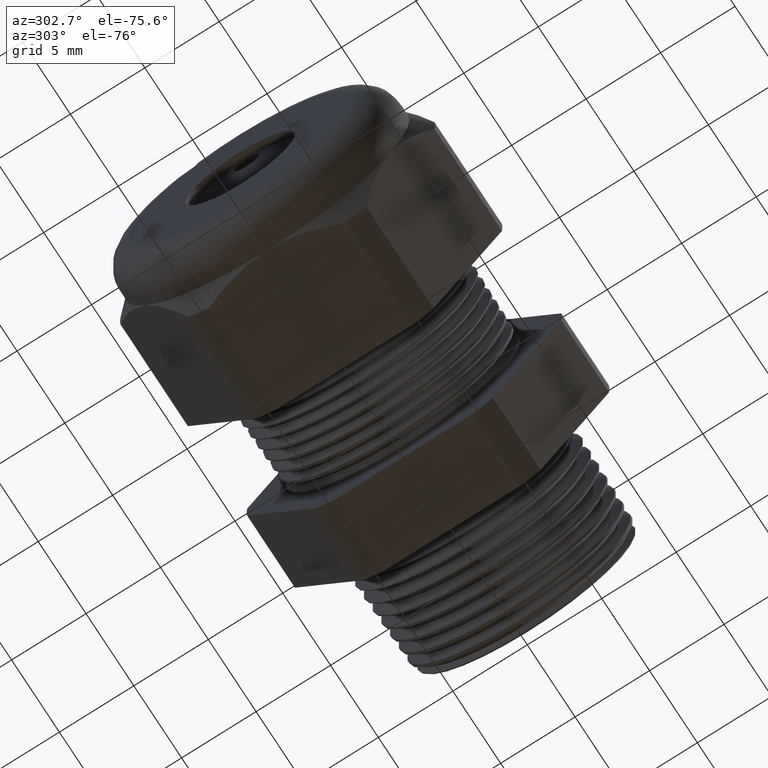
[diagram: clean part render]
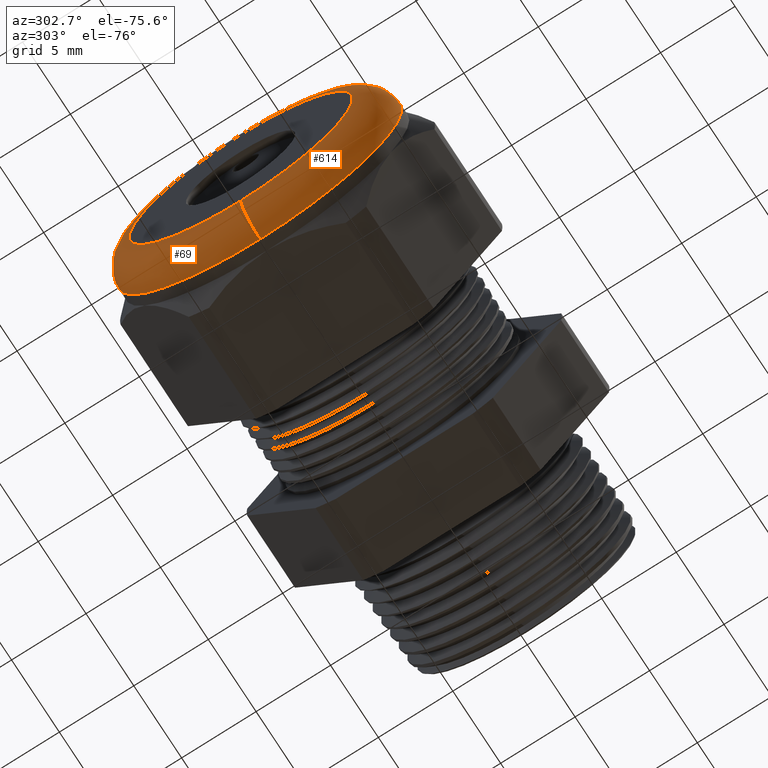
[diagram: same view with one multi-face feature highlighted, each face labeled with its STEP entity id]
A machine part, auxiliary view. The highlighted faces form ONE feature: a constant-radius fillet chain: 2 tangent blend faces with common blend radius 2.032 mm. The faces share edges in the B-rep.
Their STEP definitions:
[1] entity #69 (Torus):
#69 = ADVANCED_FACE ( 'NONE', ( #1507 ), #1506, .T. ) ;
#70 = ORIENTED_EDGE ( 'NONE', *, *, #71, .F. ) ;
#71 = EDGE_CURVE ( 'NONE', #72, #73, #1500, .T. ) ;
#72 = VERTEX_POINT ( 'NONE', #1496 ) ;
#73 = VERTEX_POINT ( 'NONE', #1495 ) ;
#74 = ORIENTED_EDGE ( 'NONE', *, *, #75, .T. ) ;
#75 = EDGE_CURVE ( 'NONE', #72, #76, #1557, .T. ) ;
#76 = VERTEX_POINT ( 'NONE', #1552 ) ;
#77 = ORIENTED_EDGE ( 'NONE', *, *, #78, .F. ) ;
#78 = EDGE_CURVE ( 'NONE', #79, #76, #1551, .T. ) ;
#79 = VERTEX_POINT ( 'NONE', #1546 ) ;
#80 = ORIENTED_EDGE ( 'NONE', *, *, #81, .F. ) ;
#81 = EDGE_CURVE ( 'NONE', #73, #79, #1545, .T. ) ;
#97 = EDGE_LOOP ( 'NONE', ( #70, #74, #77, #80 ) ) ;
#1495 = CARTESIAN_POINT ( 'NONE',  ( -1.100000000000000100, 4.592425496802576100E-017, 0.3750000000000001100 ) ) ;
#1496 = CARTESIAN_POINT ( 'NONE',  ( -1.100000000000000100, 0.0000000000000000000, -0.3750000000000001100 ) ) ;
#1497 = DIRECTION ( 'NONE',  ( 0.0000000000000000000, 0.0000000000000000000, 1.000000000000000000 ) ) ;
#1498 = DIRECTION ( 'NONE',  ( 1.000000000000000000, 0.0000000000000000000, 0.0000000000000000000 ) ) ;
#1499 = AXIS2_PLACEMENT_3D ( 'NONE', #1505, #1498, #1497 ) ;
#1500 = CIRCLE ( 'NONE', #1499, 0.3750000000000001100 ) ;
#1501 = DIRECTION ( 'NONE',  ( 0.0000000000000000000, 0.0000000000000000000, 1.000000000000000000 ) ) ;
#1502 = DIRECTION ( 'NONE',  ( -1.000000000000000000, 0.0000000000000000000, 0.0000000000000000000 ) ) ;
#1503 = CARTESIAN_POINT ( 'NONE',  ( -1.100000000000000100, 0.0000000000000000000, 0.0000000000000000000 ) ) ;
#1504 = AXIS2_PLACEMENT_3D ( 'NONE', #1503, #1502, #1501 ) ;
#1505 = CARTESIAN_POINT ( 'NONE',  ( -1.100000000000000100, 0.0000000000000000000, 0.0000000000000000000 ) ) ;
#1506 = TOROIDAL_SURFACE ( 'NONE', #1504, 0.2950000000000001000, 0.08000000000000000200 ) ;
#1507 = FACE_OUTER_BOUND ( 'NONE', #97, .T. ) ;
#1541 = DIRECTION ( 'NONE',  ( 0.0000000000000000000, 0.0000000000000000000, -1.000000000000000000 ) ) ;
#1542 = DIRECTION ( 'NONE',  ( 0.0000000000000000000, -1.000000000000000000, 0.0000000000000000000 ) ) ;
#1543 = CARTESIAN_POINT ( 'NONE',  ( -1.100000000000000100, 0.0000000000000000000, 0.2950000000000001000 ) ) ;
#1544 = AXIS2_PLACEMENT_3D ( 'NONE', #1543, #1542, #1541 ) ;
#1545 = CIRCLE ( 'NONE', #1544, 0.08000000000000000200 ) ;
#1546 = CARTESIAN_POINT ( 'NONE',  ( -1.179999999999999900, 0.0000000000000000000, 0.2950000000000001000 ) ) ;
#1547 = DIRECTION ( 'NONE',  ( 0.0000000000000000000, 0.0000000000000000000, 1.000000000000000000 ) ) ;
#1548 = DIRECTION ( 'NONE',  ( -1.000000000000000000, 0.0000000000000000000, 0.0000000000000000000 ) ) ;
#1549 = CARTESIAN_POINT ( 'NONE',  ( -1.179999999999999900, 0.0000000000000000000, 0.0000000000000000000 ) ) ;
#1550 = AXIS2_PLACEMENT_3D ( 'NONE', #1549, #1548, #1547 ) ;
#1551 = CIRCLE ( 'NONE', #1550, 0.2950000000000001000 ) ;
#1552 = CARTESIAN_POINT ( 'NONE',  ( -1.179999999999999900, 4.102566777143634000E-017, -0.2950000000000001000 ) ) ;
#1553 = DIRECTION ( 'NONE',  ( 0.0000000000000000000, -1.224646799147353500E-016, 1.000000000000000000 ) ) ;
#1554 = DIRECTION ( 'NONE',  ( 0.0000000000000000000, 1.000000000000000000, 1.224646799147353200E-016 ) ) ;
#1555 = CARTESIAN_POINT ( 'NONE',  ( -1.100000000000000100, 3.612708057484693200E-017, -0.2950000000000001000 ) ) ;
#1556 = AXIS2_PLACEMENT_3D ( 'NONE', #1555, #1554, #1553 ) ;
#1557 = CIRCLE ( 'NONE', #1556, 0.08000000000000000200 ) ;
[2] entity #614 (Torus):
#72 = VERTEX_POINT ( 'NONE', #1496 ) ;
#73 = VERTEX_POINT ( 'NONE', #1495 ) ;
#75 = EDGE_CURVE ( 'NONE', #72, #76, #1557, .T. ) ;
#76 = VERTEX_POINT ( 'NONE', #1552 ) ;
#79 = VERTEX_POINT ( 'NONE', #1546 ) ;
#81 = EDGE_CURVE ( 'NONE', #73, #79, #1545, .T. ) ;
#400 = EDGE_CURVE ( 'NONE', #76, #79, #2181, .T. ) ;
#460 = EDGE_CURVE ( 'NONE', #73, #72, #2265, .T. ) ;
#614 = ADVANCED_FACE ( 'NONE', ( #2460 ), #2459, .T. ) ;
#615 = EDGE_LOOP ( 'NONE', ( #616, #617, #618, #619 ) ) ;
#616 = ORIENTED_EDGE ( 'NONE', *, *, #75, .F. ) ;
#617 = ORIENTED_EDGE ( 'NONE', *, *, #460, .F. ) ;
#618 = ORIENTED_EDGE ( 'NONE', *, *, #81, .T. ) ;
#619 = ORIENTED_EDGE ( 'NONE', *, *, #400, .F. ) ;
#1495 = CARTESIAN_POINT ( 'NONE',  ( -1.100000000000000100, 4.592425496802576100E-017, 0.3750000000000001100 ) ) ;
#1496 = CARTESIAN_POINT ( 'NONE',  ( -1.100000000000000100, 0.0000000000000000000, -0.3750000000000001100 ) ) ;
#1541 = DIRECTION ( 'NONE',  ( 0.0000000000000000000, 0.0000000000000000000, -1.000000000000000000 ) ) ;
#1542 = DIRECTION ( 'NONE',  ( 0.0000000000000000000, -1.000000000000000000, 0.0000000000000000000 ) ) ;
#1543 = CARTESIAN_POINT ( 'NONE',  ( -1.100000000000000100, 0.0000000000000000000, 0.2950000000000001000 ) ) ;
#1544 = AXIS2_PLACEMENT_3D ( 'NONE', #1543, #1542, #1541 ) ;
#1545 = CIRCLE ( 'NONE', #1544, 0.08000000000000000200 ) ;
#1546 = CARTESIAN_POINT ( 'NONE',  ( -1.179999999999999900, 0.0000000000000000000, 0.2950000000000001000 ) ) ;
#1552 = CARTESIAN_POINT ( 'NONE',  ( -1.179999999999999900, 4.102566777143634000E-017, -0.2950000000000001000 ) ) ;
#1553 = DIRECTION ( 'NONE',  ( 0.0000000000000000000, -1.224646799147353500E-016, 1.000000000000000000 ) ) ;
#1554 = DIRECTION ( 'NONE',  ( 0.0000000000000000000, 1.000000000000000000, 1.224646799147353200E-016 ) ) ;
#1555 = CARTESIAN_POINT ( 'NONE',  ( -1.100000000000000100, 3.612708057484693200E-017, -0.2950000000000001000 ) ) ;
#1556 = AXIS2_PLACEMENT_3D ( 'NONE', #1555, #1554, #1553 ) ;
#1557 = CIRCLE ( 'NONE', #1556, 0.08000000000000000200 ) ;
#2177 = DIRECTION ( 'NONE',  ( 0.0000000000000000000, 0.0000000000000000000, 1.000000000000000000 ) ) ;
#2178 = DIRECTION ( 'NONE',  ( -1.000000000000000000, 0.0000000000000000000, 0.0000000000000000000 ) ) ;
#2179 = CARTESIAN_POINT ( 'NONE',  ( -1.179999999999999900, 0.0000000000000000000, 0.0000000000000000000 ) ) ;
#2180 = AXIS2_PLACEMENT_3D ( 'NONE', #2179, #2178, #2177 ) ;
#2181 = CIRCLE ( 'NONE', #2180, 0.2950000000000001000 ) ;
#2262 = DIRECTION ( 'NONE',  ( 0.0000000000000000000, 0.0000000000000000000, 1.000000000000000000 ) ) ;
#2263 = DIRECTION ( 'NONE',  ( 1.000000000000000000, 0.0000000000000000000, 0.0000000000000000000 ) ) ;
#2264 = AXIS2_PLACEMENT_3D ( 'NONE', #2270, #2263, #2262 ) ;
#2265 = CIRCLE ( 'NONE', #2264, 0.3750000000000001100 ) ;
#2270 = CARTESIAN_POINT ( 'NONE',  ( -1.100000000000000100, 0.0000000000000000000, 0.0000000000000000000 ) ) ;
#2456 = DIRECTION ( 'NONE',  ( 0.0000000000000000000, 0.0000000000000000000, 1.000000000000000000 ) ) ;
#2457 = DIRECTION ( 'NONE',  ( -1.000000000000000000, 0.0000000000000000000, 0.0000000000000000000 ) ) ;
#2458 = AXIS2_PLACEMENT_3D ( 'NONE', #2464, #2457, #2456 ) ;
#2459 = TOROIDAL_SURFACE ( 'NONE', #2458, 0.2950000000000001000, 0.08000000000000000200 ) ;
#2460 = FACE_OUTER_BOUND ( 'NONE', #615, .T. ) ;
#2464 = CARTESIAN_POINT ( 'NONE',  ( -1.100000000000000100, 0.0000000000000000000, 0.0000000000000000000 ) ) ;